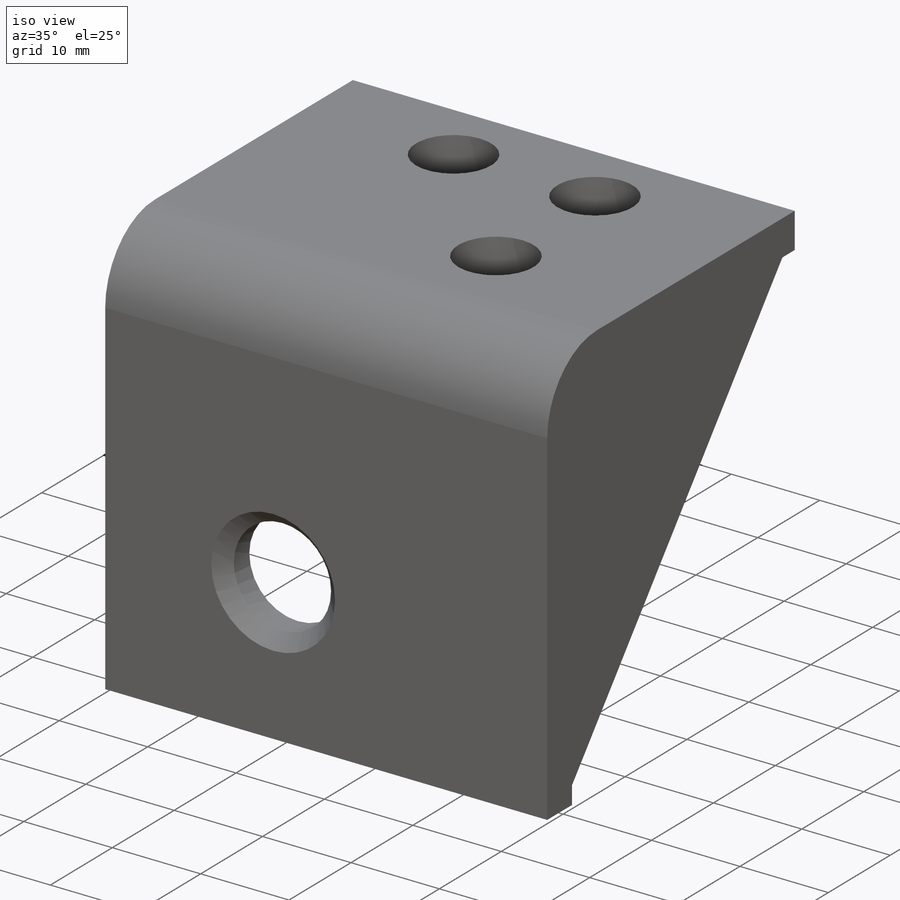
[diagram: iso view]
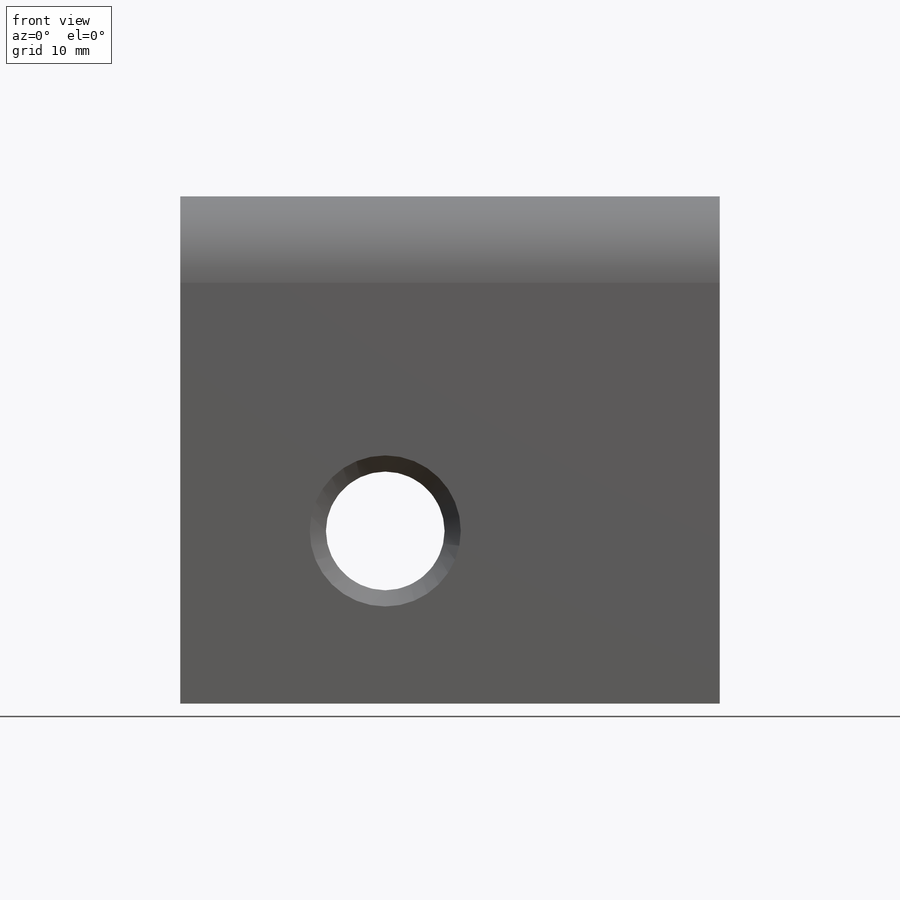
[diagram: front view]
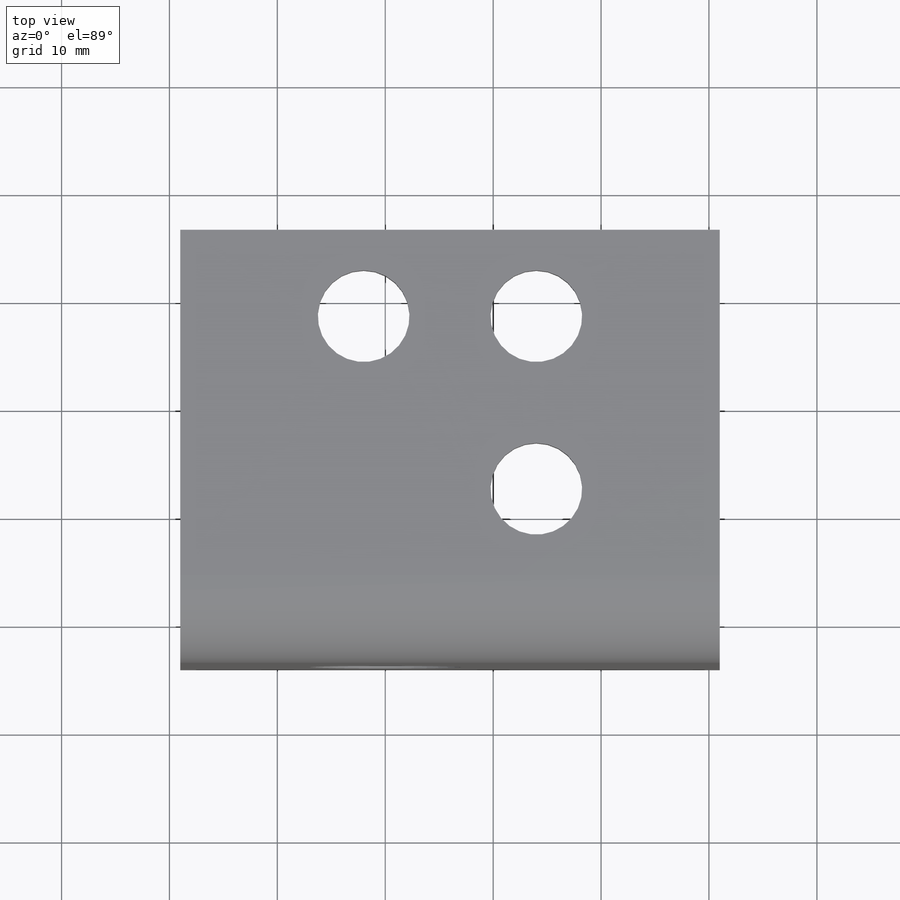
[diagram: top view]
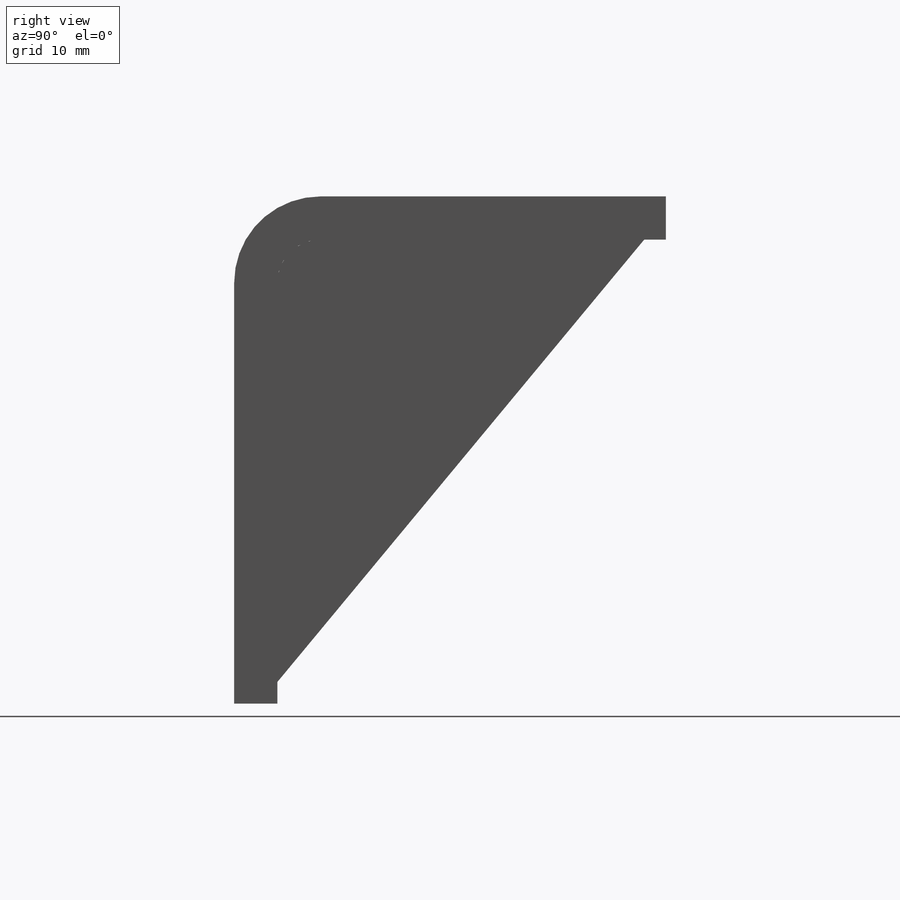
[diagram: right view]
SOLIDWORKS PART (.sldprt)
format: sldprt  version: not decoded by parser v0  size: 475,136 bytes
history: native  units: mm
features: sketch x7, plane x3, sheet_metal_op x2, move_body x2, material x1, hole x1, extrude x1, cut_extrude x1 + 6 further entries (+12 scaffold rows collapsed)
feature tree (36):
  scaffold x12  (default folders/planes/origin — collapsed)
  material  "Ст 3 ГОСТ 380-2005"
  plane  "Спереди"
  plane  "Сверху"
  plane  "Слева"
  "Начало координат"
  "PTricksFreeParameters"
  "PTricksEqu"
  "PTricksFreeParameters"
  sketch  "Эскиз1"  dims[c1.D1=~28.693667mm c2.D1=22.0mm c2.D3=10.0mm c2.D6=22.0mm c2.D2=8.0mm c3.D3=31.0mm c3.D4=31.0mm c3.D5=50.0mm c3.D6=16.0mm c3.D7=43.0mm c3.D8=8.0mm c3.D9=31.0mm c3.D10=19.0mm c3.D11=12.0mm c3.D12=34.0mm c4.D4=5.0mm]
  sketch  "Эскиз2"  dims[D1=36.0mm]
  sheet_metal_op  "Листовой металл1"  Толщина=4mm
  sheet_metal_op  "Базовая кромка1"
  hole  "Диаметр отверстия Ø11.0 (11)1"  [1 undecoded]
  sketch  "Эскиз5"
  sketch  "Эскиз4"  dims[hole-wizard template sketch: 54 standard entries collapsed; hole parameters kept: c17.Диаметр сквозного отверстия=11.0mm c17.Глубина сквозного отверстия=4.0mm c17.Диаметр передней зенковки=14.0mm c17.D4=~3.666174mm c17.Угол передней зенковки=90.0deg]
  sketch  "Эскиз6"  dims[D1=2.0mm D2=2.0mm D5=6.0mm]
  extrude  "Вытянуть1"  [1 undecoded]
  move_body  "Тело-Переместить/Копировать1"
  move_body  "Скругленный шов2"
  sketch  "Эскиз7"  dims[c1.D4=15.0mm c1.D6=8.5mm c2.D4=15.0mm c2.D1=13.0mm c2.D2=16.0mm c2.D3=16.0mm c2.D5=8.0mm c2.D7=33.0mm]
  cut_extrude  "Вытянуть2"  [1 undecoded]
  "Развертка1"
  sketch  "Сгиб-Линии1"
  "Преобразование эскиза1"
decode coverage: 6 of 14 modeling features carry decoded parameters; 6 rows unclassified (native names shown)
note: ~ marks probable driven/reference dimensions
note: 3 parameter values undecoded
summary: no parameter record found for 3 features
note: suppression state not decoded; provenance and decode notes live in map.json
